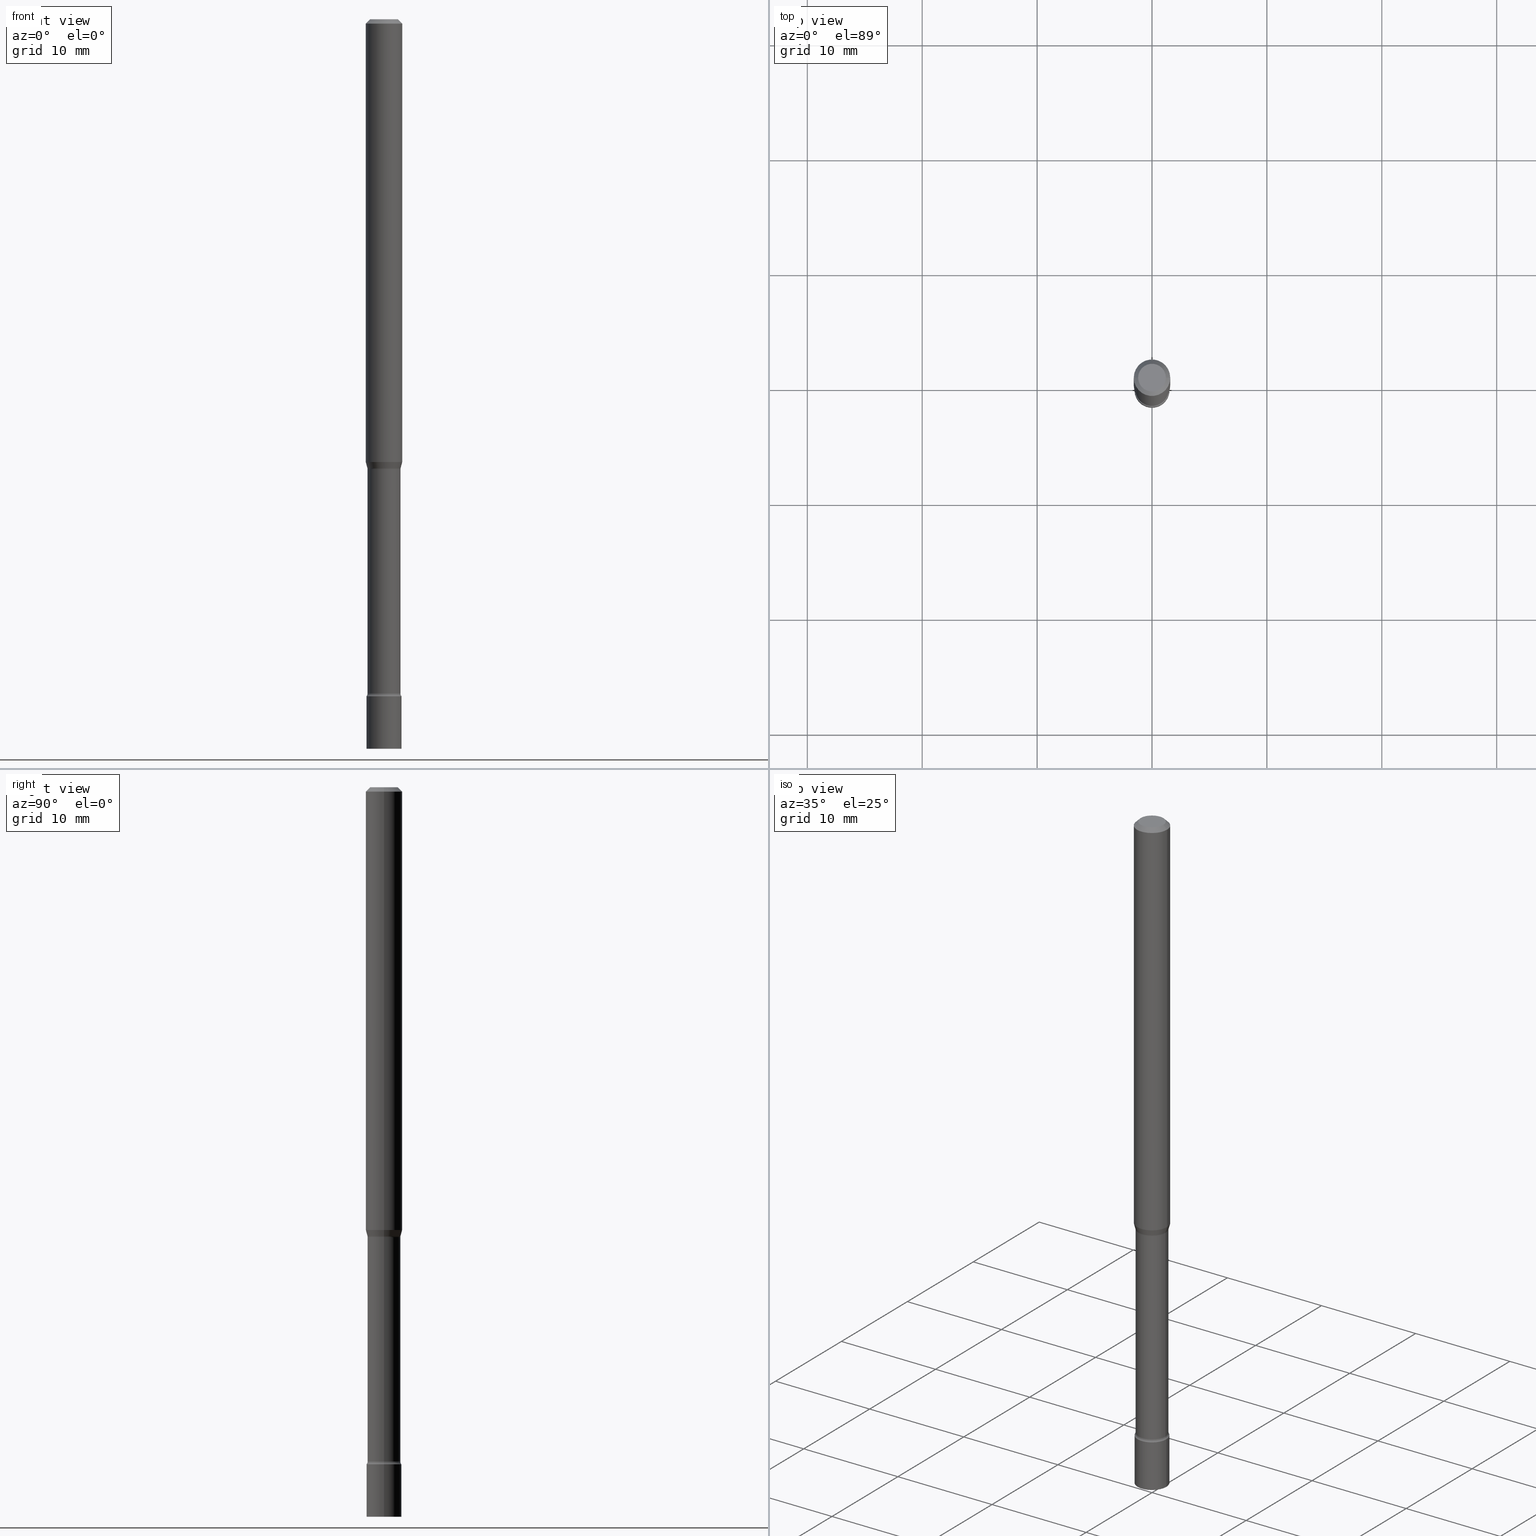
[diagram: canonical four-view strip — front | top / right | iso, engineering-drawing reading convention]
A machine part, canonical four-view strip (front | top / right | iso — engineering-drawing reading convention). The complete STEP part file that produces these views, byte-faithful:
ISO-10303-21;
HEADER;
FILE_DESCRIPTION (( 'STEP AP203' ),
    '1' );
FILE_NAME ('09783.STEP',
    '2024-03-09T02:05:43',
    ( '' ),
    ( '' ),
    'SwSTEP 2.0',
    'SolidWorks 2023',
    '' );
FILE_SCHEMA (( 'CONFIG_CONTROL_DESIGN' ));
ENDSEC;

DATA;
#1 = EDGE_CURVE ( 'NONE', #126, #133, #448, .T. ) ;
#2 = EDGE_LOOP ( 'NONE', ( #462, #175, #27, #181 ) ) ;
#3 = CARTESIAN_POINT ( 'NONE',  ( 3.770851242666705328E-29, -5.383776195396521708E-15, -1.541974787463811003 ) ) ;
#4 = AXIS2_PLACEMENT_3D ( 'NONE', #202, #38, #118 ) ;
#5 = VERTEX_POINT ( 'NONE', #407 ) ;
#6 = ORIENTED_EDGE ( 'NONE', *, *, #360, .T. ) ;
#7 = VERTEX_POINT ( 'NONE', #35 ) ;
#8 = VERTEX_POINT ( 'NONE', #208 ) ;
#9 = CONICAL_SURFACE ( 'NONE', #71, 0.05691111260566396324, 0.2617993877991485197 ) ;
#10 = PRODUCT_DEFINITION_FORMATION_WITH_SPECIFIED_SOURCE ( 'ANY', '', #198, .NOT_KNOWN. ) ;
#11 = EDGE_CURVE ( 'NONE', #13, #464, #395, .T. ) ;
#12 = DIRECTION ( 'NONE',  ( 1.000000000000000000, -6.982962677686266711E-15, 0.000000000000000000 ) ) ;
#13 = VERTEX_POINT ( 'NONE', #42 ) ;
#14 = EDGE_CURVE ( 'NONE', #8, #363, #218, .T. ) ;
#15 = DIRECTION ( 'NONE',  ( -2.445468806185136597E-29, 3.491481338843145583E-15, 1.000000000000000000 ) ) ;
#16 = AXIS2_PLACEMENT_3D ( 'NONE', #346, #468, #311 ) ;
#17 = FACE_OUTER_BOUND ( 'NONE', #460, .T. ) ;
#18 = FACE_OUTER_BOUND ( 'NONE', #338, .T. ) ;
#19 = DIRECTION ( 'NONE',  ( 1.000000000000000000, -6.982962677686270655E-15, 4.883557194083115143E-29 ) ) ;
#20 = CARTESIAN_POINT ( 'NONE',  ( 6.113672015462842613E-29, -8.728703347107864943E-15, -2.500000000000000000 ) ) ;
#21 = DIRECTION ( 'NONE',  ( -1.000000000000000000, 6.982962677686265922E-15, -4.876176775795935793E-29 ) ) ;
#22 = APPROVAL_DATE_TIME ( #274, #376 ) ;
#23 = CARTESIAN_POINT ( 'NONE',  ( -0.06250000000000000000, 4.440892098500626162E-16, -3.074334431409316114E-30 ) ) ;
#24 = EDGE_CURVE ( 'NONE', #5, #8, #273, .T. ) ;
#25 = DIRECTION ( 'NONE',  ( 1.000000000000000000, -6.982962677686259611E-15, 0.000000000000000000 ) ) ;
#26 = CIRCLE ( 'NONE', #302, 0.05639999999999999181 ) ;
#27 = ORIENTED_EDGE ( 'NONE', *, *, #289, .T. ) ;
#28 = ADVANCED_FACE ( 'NONE', ( #18 ), #506, .T. ) ;
#29 = FACE_OUTER_BOUND ( 'NONE', #308, .T. ) ;
#30 = CALENDAR_DATE ( 2024, 8, 3 ) ;
#31 = VERTEX_POINT ( 'NONE', #303 ) ;
#32 = EDGE_CURVE ( 'NONE', #340, #7, #225, .T. ) ;
#33 = EDGE_CURVE ( 'NONE', #65, #464, #268, .T. ) ;
#34 = AXIS2_PLACEMENT_3D ( 'NONE', #39, #178, #416 ) ;
#35 = CARTESIAN_POINT ( 'NONE',  ( 0.05639999999999999181, -5.777615290418026324E-15, -1.541974787463811003 ) ) ;
#36 = AXIS2_PLACEMENT_3D ( 'NONE', #111, #255, #515 ) ;
#37 = EDGE_CURVE ( 'NONE', #5, #241, #341, .T. ) ;
#38 = DIRECTION ( 'NONE',  ( -2.445468806185136597E-29, 3.491481338843145583E-15, 1.000000000000000000 ) ) ;
#39 = CARTESIAN_POINT ( 'NONE',  ( 0.000000000000000000, 0.000000000000000000, 0.000000000000000000 ) ) ;
#40 = PERSON_AND_ORGANIZATION ( #174, #452 ) ;
#41 = ORIENTED_EDGE ( 'NONE', *, *, #69, .T. ) ;
#42 = CARTESIAN_POINT ( 'NONE',  ( -0.06250000000000000000, -4.853306698891908951E-15, -1.517234490073829711 ) ) ;
#43 = DATE_AND_TIME ( #229, #142 ) ;
#44 = VECTOR ( 'NONE', #245, 39.37007874015748143 ) ;
#45 = DIMENSIONAL_EXPONENTS ( 1.000000000000000000, 0.000000000000000000, 0.000000000000000000, 0.000000000000000000, 0.000000000000000000, 0.000000000000000000, 0.000000000000000000 ) ;
#46 = TOROIDAL_SURFACE ( 'NONE', #54, 0.07140000000000003288, 0.01500000000000001506 ) ;
#47 = CARTESIAN_POINT ( 'NONE',  ( -0.06250000000000000000, 3.840629472727443437E-16, -0.01500000000000003067 ) ) ;
#48 = COORDINATED_UNIVERSAL_TIME_OFFSET ( 5, 0, .BEHIND. ) ;
#49 = APPLICATION_PROTOCOL_DEFINITION ( 'international standard', 'config_control_design', 1994, #498 ) ;
#50 = LENGTH_MEASURE_WITH_UNIT ( LENGTH_MEASURE( 0.02539999999999999897 ), #301 );
#51 = ADVANCED_FACE ( 'NONE', ( #193 ), #408, .T. ) ;
#52 = EDGE_CURVE ( 'NONE', #31, #117, #185, .T. ) ;
#53 = AXIS2_PLACEMENT_3D ( 'NONE', #190, #471, #461 ) ;
#54 = AXIS2_PLACEMENT_3D ( 'NONE', #513, #479, #109 ) ;
#55 = DIRECTION ( 'NONE',  ( -2.445468806185136877E-29, 3.491481338843145188E-15, 1.000000000000000000 ) ) ;
#56 = FACE_OUTER_BOUND ( 'NONE', #157, .T. ) ;
#57 = DIRECTION ( 'NONE',  ( 1.000000000000000000, -6.982962677686267499E-15, 4.876681293081646444E-29 ) ) ;
#58 = CALENDAR_DATE ( 2024, 8, 3 ) ;
#59 = CARTESIAN_POINT ( 'NONE',  ( 6.113672015462842613E-29, -8.728703347107864943E-15, -2.500000000000000000 ) ) ;
#60 = VECTOR ( 'NONE', #441, 39.37007874015748143 ) ;
#61 = AXIS2_PLACEMENT_3D ( 'NONE', #169, #337, #296 ) ;
#62 = DIRECTION ( 'NONE',  ( -2.445468806185136597E-29, 3.491481338843145583E-15, 1.000000000000000000 ) ) ;
#63 = CARTESIAN_POINT ( 'NONE',  ( -0.05999999999999999778, -7.988144385155922766E-15, -2.320000000000000284 ) ) ;
#64 = DATE_TIME_ROLE ( 'classification_date' ) ;
#65 = VERTEX_POINT ( 'NONE', #355 ) ;
#66 = CC_DESIGN_PERSON_AND_ORGANIZATION_ASSIGNMENT ( #40, #194, ( #10 ) ) ;
#67 = CARTESIAN_POINT ( 'NONE',  ( 5.649647131350973229E-29, -8.066198791933100712E-15, -2.310251153914436806 ) ) ;
#68 = PERSON_AND_ORGANIZATION ( #174, #452 ) ;
#69 = EDGE_CURVE ( 'NONE', #345, #165, #171, .T. ) ;
#70 = VERTEX_POINT ( 'NONE', #201 ) ;
#71 = AXIS2_PLACEMENT_3D ( 'NONE', #336, #124, #295 ) ;
#72 = CARTESIAN_POINT ( 'NONE',  ( 0.000000000000000000, 0.000000000000000000, 0.000000000000000000 ) ) ;
#73 = TOROIDAL_SURFACE ( 'NONE', #112, 0.07140000000000003288, 0.01500000000000001506 ) ;
#74 = ORIENTED_EDGE ( 'NONE', *, *, #309, .T. ) ;
#75 = CYLINDRICAL_SURFACE ( 'NONE', #373, 0.06250000000000000000 ) ;
#76 = FACE_OUTER_BOUND ( 'NONE', #512, .T. ) ;
#77 = CARTESIAN_POINT ( 'NONE',  ( 0.05999999999999999778, -4.189777606611760421E-16, 2.925706065477561756E-30 ) ) ;
#78 = CC_DESIGN_DATE_AND_TIME_ASSIGNMENT ( #107, #64, ( #444 ) ) ;
#79 = DIRECTION ( 'NONE',  ( 1.000000000000000000, -6.982962677686262766E-15, 0.000000000000000000 ) ) ;
#80 = CARTESIAN_POINT ( 'NONE',  ( 3.761357234148032586E-29, -5.370221267404831910E-15, -1.538092501787273081 ) ) ;
#81 = DIRECTION ( 'NONE',  ( 1.000000000000000000, -6.982962677686261977E-15, 0.000000000000000000 ) ) ;
#82 = CONICAL_SURFACE ( 'NONE', #505, 0.06250000000000000000, 0.7853981633974483900 ) ;
#83 = LINE ( 'NONE', #367, #442 ) ;
#84 = DIRECTION ( 'NONE',  ( 1.000000000000000000, -6.982962677686266711E-15, 4.876176775795935793E-29 ) ) ;
#85 = CYLINDRICAL_SURFACE ( 'NONE', #465, 0.05999999999999999778 ) ;
#86 = DIRECTION ( 'NONE',  ( -6.982962677686266711E-15, -1.000000000000000000, 3.491481338843145583E-15 ) ) ;
#87 = AXIS2_PLACEMENT_3D ( 'NONE', #80, #290, #453 ) ;
#88 = LOCAL_TIME ( 21, 5, 43.00000000000000000, #176 ) ;
#89 = ORIENTED_EDGE ( 'NONE', *, *, #467, .T. ) ;
#90 = EDGE_CURVE ( 'NONE', #241, #7, #331, .T. ) ;
#91 = APPROVAL_STATUS ( 'not_yet_approved' ) ;
#92 = EDGE_CURVE ( 'NONE', #345, #13, #252, .T. ) ;
#93 = ORIENTED_EDGE ( 'NONE', *, *, #228, .T. ) ;
#94 = DIRECTION ( 'NONE',  ( -2.445468806185136597E-29, 3.491481338843145583E-15, 1.000000000000000000 ) ) ;
#95 = AXIS2_PLACEMENT_3D ( 'NONE', #457, #15, #418 ) ;
#96 = AXIS2_PLACEMENT_3D ( 'NONE', #332, #412, #213 ) ;
#97 = DIRECTION ( 'NONE',  ( -2.445468806185136877E-29, 3.491481338843145188E-15, 1.000000000000000000 ) ) ;
#98 = DATE_TIME_ROLE ( 'creation_date' ) ;
#99 = DIRECTION ( 'NONE',  ( -2.445468806185136597E-29, 3.491481338843145583E-15, 1.000000000000000000 ) ) ;
#100 = DIRECTION ( 'NONE',  ( -2.445468806185136597E-29, 3.491481338843145583E-15, 1.000000000000000000 ) ) ;
#101 = AXIS2_PLACEMENT_3D ( 'NONE', #140, #235, #189 ) ;
#102 = CC_DESIGN_APPROVAL ( #376, ( #444 ) ) ;
#103 = DIRECTION ( 'NONE',  ( -2.445468806185136877E-29, 3.491481338843145188E-15, 1.000000000000000000 ) ) ;
#104 = FACE_OUTER_BOUND ( 'NONE', #182, .T. ) ;
#105 = DIRECTION ( 'NONE',  ( -2.445468806185136597E-29, 3.491481338843145583E-15, 1.000000000000000000 ) ) ;
#106 = DIRECTION ( 'NONE',  ( -2.445468806185136597E-29, 3.491481338843145583E-15, 1.000000000000000000 ) ) ;
#107 = DATE_AND_TIME ( #30, #226 ) ;
#108 = EDGE_LOOP ( 'NONE', ( #294, #277, #486, #384 ) ) ;
#109 = DIRECTION ( 'NONE',  ( 1.000000000000000000, -6.982962677686270655E-15, 4.883557194083115143E-29 ) ) ;
#110 = COORDINATED_UNIVERSAL_TIME_OFFSET ( 5, 0, .BEHIND. ) ;
#111 = CARTESIAN_POINT ( 'NONE',  ( 7.070806723891919892E-46, -1.009523804376275404E-31, -2.891391092786900929E-17 ) ) ;
#112 = AXIS2_PLACEMENT_3D ( 'NONE', #197, #359, #19 ) ;
#113 = APPROVAL_STATUS ( 'not_yet_approved' ) ;
#114 = ORIENTED_EDGE ( 'NONE', *, *, #52, .T. ) ;
#115 = CARTESIAN_POINT ( 'NONE',  ( 3.668203209277712094E-31, -5.237222008264728876E-17, -0.01500000000000003067 ) ) ;
#116 = APPLICATION_CONTEXT ( 'configuration controlled 3d designs of mechanical parts and assemblies' ) ;
#117 = VERTEX_POINT ( 'NONE', #440 ) ;
#118 = DIRECTION ( 'NONE',  ( 1.000000000000000000, -6.982962677686267499E-15, 4.876176775795936353E-29 ) ) ;
#119 = ADVANCED_FACE ( 'NONE', ( #160 ), #466, .T. ) ;
#120 = TOROIDAL_SURFACE ( 'NONE', #426, 0.07139999999999999125, 0.01500000000000003240 ) ;
#121 = ORIENTED_EDGE ( 'NONE', *, *, #52, .F. ) ;
#122 = ADVANCED_BREP_SHAPE_REPRESENTATION ( '09783', ( #514, #516, #96 ), #519 ) ;
#123 = CC_DESIGN_PERSON_AND_ORGANIZATION_ASSIGNMENT ( #356, #153, ( #10 ) ) ;
#124 = DIRECTION ( 'NONE',  ( -2.445468806185136597E-29, 3.491481338843145583E-15, 1.000000000000000000 ) ) ;
#125 = ADVANCED_FACE ( 'NONE', ( #366 ), #85, .T. ) ;
#126 = VERTEX_POINT ( 'NONE', #329 ) ;
#127 = CYLINDRICAL_SURFACE ( 'NONE', #4, 0.05999999999999999778 ) ;
#128 = APPROVAL_DATE_TIME ( #43, #151 ) ;
#129 = ORIENTED_EDGE ( 'NONE', *, *, #14, .T. ) ;
#130 = EDGE_CURVE ( 'NONE', #340, #345, #250, .T. ) ;
#131 = PERSON_AND_ORGANIZATION ( #174, #452 ) ;
#132 = AXIS2_PLACEMENT_3D ( 'NONE', #315, #391, #12 ) ;
#133 = VERTEX_POINT ( 'NONE', #410 ) ;
#134 = ORIENTED_EDGE ( 'NONE', *, *, #321, .T. ) ;
#135 = FACE_OUTER_BOUND ( 'NONE', #492, .T. ) ;
#136 = CALENDAR_DATE ( 2024, 8, 3 ) ;
#137 = CARTESIAN_POINT ( 'NONE',  ( 3.668203209277712094E-31, -5.237222008264728876E-17, -0.01500000000000003067 ) ) ;
#138 = ORIENTED_EDGE ( 'NONE', *, *, #380, .T. ) ;
#139 = DIRECTION ( 'NONE',  ( 1.000000000000000000, -6.982962677686265922E-15, 4.876176775795935793E-29 ) ) ;
#140 = CARTESIAN_POINT ( 'NONE',  ( 5.649647131350973229E-29, -8.066198791933100712E-15, -2.310251153914436806 ) ) ;
#141 = AXIS2_PLACEMENT_3D ( 'NONE', #59, #100, #434 ) ;
#142 = LOCAL_TIME ( 21, 5, 43.00000000000000000, #284 ) ;
#143 = PLANE ( 'NONE',  #149 ) ;
#144 = DIRECTION ( 'NONE',  ( 1.000000000000000000, -6.982962677686251722E-15, 0.000000000000000000 ) ) ;
#145 = PLANE ( 'NONE',  #517 ) ;
#146 = EDGE_CURVE ( 'NONE', #217, #266, #83, .T. ) ;
#147 = ORIENTED_EDGE ( 'NONE', *, *, #319, .F. ) ;
#148 = VECTOR ( 'NONE', #97, 39.37007874015748143 ) ;
#149 = AXIS2_PLACEMENT_3D ( 'NONE', #316, #272, #211 ) ;
#150 = CARTESIAN_POINT ( 'NONE',  ( 5.673487630349517039E-29, -8.100236706116099992E-15, -2.320000000000000284 ) ) ;
#151 = APPROVAL ( #91, 'UNSPECIFIED' ) ;
#152 = DIRECTION ( 'NONE',  ( 2.438088387897960049E-29, -3.491481338843145188E-15, -1.000000000000000000 ) ) ;
#153 = PERSON_AND_ORGANIZATION_ROLE ( 'design_supplier' ) ;
#154 = DIRECTION ( 'NONE',  ( -1.000000000000000000, 6.982962677686266711E-15, 0.000000000000000000 ) ) ;
#155 = CARTESIAN_POINT ( 'NONE',  ( 3.770851242666705328E-29, -5.383776195396521708E-15, -1.541974787463811003 ) ) ;
#156 = PERSON_AND_ORGANIZATION ( #174, #452 ) ;
#157 = EDGE_LOOP ( 'NONE', ( #411, #469 ) ) ;
#158 = ORIENTED_EDGE ( 'NONE', *, *, #372, .F. ) ;
#159 = AXIS2_PLACEMENT_3D ( 'NONE', #485, #287, #162 ) ;
#160 = FACE_OUTER_BOUND ( 'NONE', #496, .T. ) ;
#161 = DIRECTION ( 'NONE',  ( 1.000000000000000000, -6.982962677686267499E-15, 4.876176775795936353E-29 ) ) ;
#162 = DIRECTION ( 'NONE',  ( -1.000000000000000000, 7.105427357600974249E-15, 0.000000000000000000 ) ) ;
#163 = ORIENTED_EDGE ( 'NONE', *, *, #380, .F. ) ;
#164 = FACE_OUTER_BOUND ( 'NONE', #2, .T. ) ;
#165 = VERTEX_POINT ( 'NONE', #210 ) ;
#166 = LINE ( 'NONE', #445, #313 ) ;
#167 = CLOSED_SHELL ( 'NONE', ( #490, #437, #125, #257 ) ) ;
#168 = DIRECTION ( 'NONE',  ( -1.000000000000000000, 6.982962677686266711E-15, 0.000000000000000000 ) ) ;
#169 = CARTESIAN_POINT ( 'NONE',  ( 3.710349617143762616E-29, -5.297395908741972356E-15, -1.517234490073829711 ) ) ;
#170 = AXIS2_PLACEMENT_3D ( 'NONE', #393, #271, #57 ) ;
#171 = CIRCLE ( 'NONE', #159, 0.01500000000000003587 ) ;
#172 = CARTESIAN_POINT ( 'NONE',  ( 0.07139999999999999125, -5.882359730583320482E-15, -1.541974787463811003 ) ) ;
#173 = AXIS2_PLACEMENT_3D ( 'NONE', #137, #94, #231 ) ;
#174 = PERSON ( 'UNSPECIFIED', 'UNSPECIFIED', 'UNSPECIFIED', ('UNSPECIFIED'), ('UNSPECIFIED'), ('UNSPECIFIED') ) ;
#175 = ORIENTED_EDGE ( 'NONE', *, *, #491, .T. ) ;
#176 = COORDINATED_UNIVERSAL_TIME_OFFSET ( 5, 0, .BEHIND. ) ;
#177 = ADVANCED_FACE ( 'NONE', ( #164 ), #9, .T. ) ;
#178 = DIRECTION ( 'NONE',  ( -2.445468806185136597E-29, 3.491481338843145583E-15, 1.000000000000000000 ) ) ;
#179 = CIRCLE ( 'NONE', #388, 0.05999999999999999778 ) ;
#180 = CIRCLE ( 'NONE', #36, 0.04749999999999999362 ) ;
#181 = ORIENTED_EDGE ( 'NONE', *, *, #467, .F. ) ;
#182 = EDGE_LOOP ( 'NONE', ( #488, #325, #129, #495 ) ) ;
#183 = PLANE ( 'NONE',  #459 ) ;
#184 = ORIENTED_EDGE ( 'NONE', *, *, #423, .T. ) ;
#185 = CIRCLE ( 'NONE', #170, 0.04749999999999999362 ) ;
#186 = CIRCLE ( 'NONE', #61, 0.06250000000000000000 ) ;
#187 = DIRECTION ( 'NONE',  ( -0.2588190451025198513, 5.211531920934540787E-15, 0.9659258262890685343 ) ) ;
#188 = CARTESIAN_POINT ( 'NONE',  ( 0.06250000000000000000, -4.811533449433680977E-16, -0.01500000000000003067 ) ) ;
#189 = DIRECTION ( 'NONE',  ( 1.000000000000000000, -6.982962677686259611E-15, 0.000000000000000000 ) ) ;
#190 = CARTESIAN_POINT ( 'NONE',  ( -0.07140000000000003288, -7.558871278600389833E-15, -2.310251153914437250 ) ) ;
#191 = ADVANCED_FACE ( 'NONE', ( #260 ), #75, .T. ) ;
#192 = DIRECTION ( 'NONE',  ( 0.7071067811865475727, -7.319954787623256045E-15, -0.7071067811865474617 ) ) ;
#193 = FACE_OUTER_BOUND ( 'NONE', #501, .T. ) ;
#194 = PERSON_AND_ORGANIZATION_ROLE ( 'creator' ) ;
#195 = CIRCLE ( 'NONE', #420, 0.05999999999999999778 ) ;
#196 = LOCAL_TIME ( 21, 5, 43.00000000000000000, #48 ) ;
#197 = CARTESIAN_POINT ( 'NONE',  ( 5.649647131350973229E-29, -8.066198791933102290E-15, -2.310251153914437250 ) ) ;
#198 = PRODUCT ( '09783', '09783', '', ( #300 ) ) ;
#199 = EDGE_CURVE ( 'NONE', #126, #217, #433, .T. ) ;
#200 = FACE_OUTER_BOUND ( 'NONE', #494, .T. ) ;
#201 = CARTESIAN_POINT ( 'NONE',  ( 0.06250000000000000000, -5.733831076097364025E-15, -1.517234490073829711 ) ) ;
#202 = CARTESIAN_POINT ( 'NONE',  ( 0.000000000000000000, 0.000000000000000000, 0.000000000000000000 ) ) ;
#203 = DIRECTION ( 'NONE',  ( 1.000000000000000000, -6.982962677686262766E-15, 0.000000000000000000 ) ) ;
#204 = APPROVAL_ROLE ( '' ) ;
#205 = ORIENTED_EDGE ( 'NONE', *, *, #130, .T. ) ;
#206 = CIRCLE ( 'NONE', #451, 0.01500000000000001853 ) ;
#207 = DIRECTION ( 'NONE',  ( 2.445468806185136597E-29, -3.491481338843145583E-15, -1.000000000000000000 ) ) ;
#208 = CARTESIAN_POINT ( 'NONE',  ( -0.05999999999999999778, -7.673911064660039502E-15, -2.320000000000000284 ) ) ;
#209 = EDGE_CURVE ( 'NONE', #217, #126, #179, .T. ) ;
#210 = CARTESIAN_POINT ( 'NONE',  ( -0.05639999999999999181, -6.324241390696113876E-15, -1.541974787463811003 ) ) ;
#211 = DIRECTION ( 'NONE',  ( 1.000000000000000000, -6.982962677686265922E-15, 4.876176775795935793E-29 ) ) ;
#212 = ORIENTED_EDGE ( 'NONE', *, *, #33, .T. ) ;
#213 = DIRECTION ( 'NONE',  ( 1.000000000000000000, 0.000000000000000000, 0.000000000000000000 ) ) ;
#214 = DIRECTION ( 'NONE',  ( -2.445468806185136597E-29, 3.491481338843145583E-15, 1.000000000000000000 ) ) ;
#215 = ADVANCED_FACE ( 'NONE', ( #291 ), #82, .T. ) ;
#216 = ADVANCED_FACE ( 'NONE', ( #17 ), #463, .T. ) ;
#217 = VERTEX_POINT ( 'NONE', #267 ) ;
#218 = CIRCLE ( 'NONE', #292, 0.05999999999999999778 ) ;
#219 = ADVANCED_FACE ( 'NONE', ( #385 ), #183, .F. ) ;
#220 = EDGE_LOOP ( 'NONE', ( #114, #184 ) ) ;
#221 = ORIENTED_EDGE ( 'NONE', *, *, #489, .F. ) ;
#222 = PERSON_AND_ORGANIZATION ( #174, #452 ) ;
#223 = PERSON_AND_ORGANIZATION_ROLE ( 'creator' ) ;
#224 = ORIENTED_EDGE ( 'NONE', *, *, #319, .T. ) ;
#225 = CIRCLE ( 'NONE', #484, 0.01500000000000003587 ) ;
#226 = LOCAL_TIME ( 21, 5, 43.00000000000000000, #361 ) ;
#227 = ORIENTED_EDGE ( 'NONE', *, *, #491, .F. ) ;
#228 = EDGE_CURVE ( 'NONE', #363, #8, #280, .T. ) ;
#229 = CALENDAR_DATE ( 2024, 8, 3 ) ;
#230 = ORIENTED_EDGE ( 'NONE', *, *, #37, .T. ) ;
#231 = DIRECTION ( 'NONE',  ( 1.000000000000000000, -6.982962677686266711E-15, 0.000000000000000000 ) ) ;
#232 = EDGE_CURVE ( 'NONE', #7, #165, #335, .T. ) ;
#233 = EDGE_LOOP ( 'NONE', ( #305, #121, #415, #333 ) ) ;
#234 = CARTESIAN_POINT ( 'NONE',  ( 4.189777606612371295E-16, 0.05999999999999127559, -2.500000000000000000 ) ) ;
#235 = DIRECTION ( 'NONE',  ( -2.445468806185136597E-29, 3.491481338843145583E-15, 1.000000000000000000 ) ) ;
#236 = AXIS2_PLACEMENT_3D ( 'NONE', #234, #401, #21 ) ;
#237 = CC_DESIGN_DATE_AND_TIME_ASSIGNMENT ( #343, #98, ( #347 ) ) ;
#238 = CIRCLE ( 'NONE', #409, 0.05999999999999999778 ) ;
#239 = EDGE_CURVE ( 'NONE', #5, #165, #428, .T. ) ;
#240 = DIRECTION ( 'NONE',  ( -2.445468806185136597E-29, 3.491481338843145583E-15, 1.000000000000000000 ) ) ;
#241 = VERTEX_POINT ( 'NONE', #270 ) ;
#242 = DIRECTION ( 'NONE',  ( -2.445468806185136597E-29, 3.491481338843145583E-15, 1.000000000000000000 ) ) ;
#243 = CARTESIAN_POINT ( 'NONE',  ( 0.07140000000000003288, -8.564782327119902642E-15, -2.310251153914437250 ) ) ;
#244 = DIRECTION ( 'NONE',  ( 1.000000000000000000, -6.982962677686262766E-15, 0.000000000000000000 ) ) ;
#245 = DIRECTION ( 'NONE',  ( -2.445468806185136877E-29, 3.491481338843145188E-15, 1.000000000000000000 ) ) ;
#246 = CC_DESIGN_PERSON_AND_ORGANIZATION_ASSIGNMENT ( #131, #223, ( #347 ) ) ;
#247 = PRODUCT_DEFINITION_SHAPE ( 'NONE', 'NONE',  #347 ) ;
#248 = FACE_OUTER_BOUND ( 'NONE', #220, .T. ) ;
#249 = ORIENTED_EDGE ( 'NONE', *, *, #423, .F. ) ;
#250 = CIRCLE ( 'NONE', #87, 0.05691111260566396324 ) ;
#251 = AXIS2_PLACEMENT_3D ( 'NONE', #67, #282, #25 ) ;
#252 = LINE ( 'NONE', #435, #318 ) ;
#253 = DIRECTION ( 'NONE',  ( -2.445468806185136597E-29, 3.491481338843145583E-15, 1.000000000000000000 ) ) ;
#254 = ORIENTED_EDGE ( 'NONE', *, *, #24, .F. ) ;
#255 = DIRECTION ( 'NONE',  ( -2.445468806185136597E-29, 3.491481338843145583E-15, 1.000000000000000000 ) ) ;
#256 = ORIENTED_EDGE ( 'NONE', *, *, #454, .T. ) ;
#257 = ADVANCED_FACE ( 'NONE', ( #56 ), #387, .T. ) ;
#258 = ORIENTED_EDGE ( 'NONE', *, *, #14, .F. ) ;
#259 = CARTESIAN_POINT ( 'NONE',  ( 3.761357234148032586E-29, -5.370221267404831910E-15, -1.538092501787273081 ) ) ;
#260 = FACE_OUTER_BOUND ( 'NONE', #350, .T. ) ;
#261 = ADVANCED_FACE ( 'NONE', ( #248 ), #145, .F. ) ;
#262 = AXIS2_PLACEMENT_3D ( 'NONE', #115, #207, #168 ) ;
#263 = VECTOR ( 'NONE', #285, 39.37007874015748143 ) ;
#264 = PERSON_AND_ORGANIZATION_ROLE ( 'design_owner' ) ;
#265 = ORIENTED_EDGE ( 'NONE', *, *, #90, .T. ) ;
#266 = VERTEX_POINT ( 'NONE', #63 ) ;
#267 = CARTESIAN_POINT ( 'NONE',  ( -0.05999999999999999778, -7.988144385155922766E-15, -2.500000000000000000 ) ) ;
#268 = CIRCLE ( 'NONE', #132, 0.06250000000000000000 ) ;
#269 = CIRCLE ( 'NONE', #251, 0.05640000000000001262 ) ;
#270 = CARTESIAN_POINT ( 'NONE',  ( 0.05640000000000001262, -8.460037886954606117E-15, -2.310251153914436806 ) ) ;
#271 = DIRECTION ( 'NONE',  ( -2.445468806185136597E-29, 3.491481338843145583E-15, 1.000000000000000000 ) ) ;
#272 = DIRECTION ( 'NONE',  ( -2.438088387897960049E-29, 3.491481338843145188E-15, 1.000000000000000000 ) ) ;
#273 = CIRCLE ( 'NONE', #53, 0.01500000000000001853 ) ;
#274 = DATE_AND_TIME ( #402, #493 ) ;
#275 = ORIENTED_EDGE ( 'NONE', *, *, #199, .T. ) ;
#276 = DIRECTION ( 'NONE',  ( 1.000000000000000000, -6.982962677686268288E-15, 0.000000000000000000 ) ) ;
#277 = ORIENTED_EDGE ( 'NONE', *, *, #209, .T. ) ;
#278 = CARTESIAN_POINT ( 'NONE',  ( 0.05691111260566396324, -5.767629442675783362E-15, -1.538092501787273081 ) ) ;
#279 = ORIENTED_EDGE ( 'NONE', *, *, #502, .T. ) ;
#280 = CIRCLE ( 'NONE', #95, 0.05999999999999999778 ) ;
#281 = APPROVAL_PERSON_ORGANIZATION ( #422, #286, #379 ) ;
#282 = DIRECTION ( 'NONE',  ( -2.445468806185136597E-29, 3.491481338843145583E-15, 1.000000000000000000 ) ) ;
#283 = PRODUCT_RELATED_PRODUCT_CATEGORY ( 'detail', '', ( #198 ) ) ;
#284 = COORDINATED_UNIVERSAL_TIME_OFFSET ( 5, 0, .BEHIND. ) ;
#285 = DIRECTION ( 'NONE',  ( -0.7071067811865475727, 2.468850131082257455E-15, -0.7071067811865474617 ) ) ;
#286 = APPROVAL ( #304, 'UNSPECIFIED' ) ;
#287 = DIRECTION ( 'NONE',  ( 7.105427357601001859E-15, 1.000000000000000000, -3.491481338843145583E-15 ) ) ;
#288 = ORIENTED_EDGE ( 'NONE', *, *, #372, .T. ) ;
#289 = EDGE_CURVE ( 'NONE', #340, #70, #390, .T. ) ;
#290 = DIRECTION ( 'NONE',  ( -2.445468806185136597E-29, 3.491481338843145583E-15, 1.000000000000000000 ) ) ;
#291 = FACE_OUTER_BOUND ( 'NONE', #233, .T. ) ;
#292 = AXIS2_PLACEMENT_3D ( 'NONE', #421, #324, #447 ) ;
#293 = CC_DESIGN_APPROVAL ( #286, ( #10 ) ) ;
#294 = ORIENTED_EDGE ( 'NONE', *, *, #146, .F. ) ;
#295 = DIRECTION ( 'NONE',  ( 1.000000000000000000, -6.982962677686262766E-15, 0.000000000000000000 ) ) ;
#296 = DIRECTION ( 'NONE',  ( 1.000000000000000000, -6.982962677686262766E-15, 0.000000000000000000 ) ) ;
#297 = ADVANCED_FACE ( 'NONE', ( #29 ), #474, .T. ) ;
#298 = DIRECTION ( 'NONE',  ( -2.438088387897960049E-29, 3.491481338843145188E-15, 1.000000000000000000 ) ) ;
#299 = ORIENTED_EDGE ( 'NONE', *, *, #92, .T. ) ;
#300 = MECHANICAL_CONTEXT ( 'NONE', #116, 'mechanical' ) ;
#301 =( LENGTH_UNIT ( ) NAMED_UNIT ( * ) SI_UNIT ( $, .METRE. ) );
#302 = AXIS2_PLACEMENT_3D ( 'NONE', #3, #330, #81 ) ;
#303 = CARTESIAN_POINT ( 'NONE',  ( -0.04749999999999999362, 3.578768372314209027E-16, -2.891391092787141902E-17 ) ) ;
#304 = APPROVAL_STATUS ( 'not_yet_approved' ) ;
#305 = ORIENTED_EDGE ( 'NONE', *, *, #321, .F. ) ;
#306 =( NAMED_UNIT ( * ) PLANE_ANGLE_UNIT ( ) SI_UNIT ( $, .RADIAN. ) );
#307 = DATE_AND_TIME ( #136, #196 ) ;
#308 = EDGE_LOOP ( 'NONE', ( #138, #371, #518, #429 ) ) ;
#309 = EDGE_CURVE ( 'NONE', #241, #363, #206, .T. ) ;
#310 = ORIENTED_EDGE ( 'NONE', *, *, #11, .F. ) ;
#311 = DIRECTION ( 'NONE',  ( 1.000000000000000000, -6.982962677686261977E-15, 0.000000000000000000 ) ) ;
#312 = CARTESIAN_POINT ( 'NONE',  ( 3.761357234148032586E-29, -5.370221267404831910E-15, -1.538092501787273081 ) ) ;
#313 = VECTOR ( 'NONE', #55, 39.37007874015748143 ) ;
#314 = ORIENTED_EDGE ( 'NONE', *, *, #228, .F. ) ;
#315 = CARTESIAN_POINT ( 'NONE',  ( 3.668203209277712094E-31, -5.237222008264728876E-17, -0.01500000000000003067 ) ) ;
#316 = CARTESIAN_POINT ( 'NONE',  ( 5.673487630349517039E-29, -8.100236706116099992E-15, -2.320000000000000284 ) ) ;
#317 = DIRECTION ( 'NONE',  ( 1.000000000000000000, -6.982962677686271444E-15, 4.883557194083115143E-29 ) ) ;
#318 = VECTOR ( 'NONE', #187, 39.37007874015748143 ) ;
#319 = EDGE_CURVE ( 'NONE', #70, #13, #497, .T. ) ;
#320 = CARTESIAN_POINT ( 'NONE',  ( 5.673487630349517039E-29, -8.100236706116099992E-15, -2.320000000000000284 ) ) ;
#321 = EDGE_CURVE ( 'NONE', #117, #65, #483, .T. ) ;
#322 = DIRECTION ( 'NONE',  ( -2.445468806185136597E-29, 3.491481338843145583E-15, 1.000000000000000000 ) ) ;
#323 = DIRECTION ( 'NONE',  ( 1.000000000000000000, -6.982962677686271444E-15, 4.883557194083115143E-29 ) ) ;
#324 = DIRECTION ( 'NONE',  ( -2.445468806185136597E-29, 3.491481338843145583E-15, 1.000000000000000000 ) ) ;
#325 = ORIENTED_EDGE ( 'NONE', *, *, #24, .T. ) ;
#326 = VECTOR ( 'NONE', #103, 39.37007874015748143 ) ;
#327 = ORIENTED_EDGE ( 'NONE', *, *, #32, .T. ) ;
#328 = CARTESIAN_POINT ( 'NONE',  ( 3.668203209277712094E-31, -5.237222008264728876E-17, -0.01500000000000003067 ) ) ;
#329 = CARTESIAN_POINT ( 'NONE',  ( 0.05999999999999999778, -9.147681107769039999E-15, -2.500000000000000000 ) ) ;
#330 = DIRECTION ( 'NONE',  ( -2.445468806185136597E-29, 3.491481338843145583E-15, 1.000000000000000000 ) ) ;
#331 = LINE ( 'NONE', #481, #326 ) ;
#332 = CARTESIAN_POINT ( 'NONE',  ( 0.000000000000000000, 0.000000000000000000, 0.000000000000000000 ) ) ;
#333 = ORIENTED_EDGE ( 'NONE', *, *, #489, .T. ) ;
#334 = APPLICATION_PROTOCOL_DEFINITION ( 'international standard', 'config_control_design', 1994, #116 ) ;
#335 = CIRCLE ( 'NONE', #16, 0.05639999999999999181 ) ;
#336 = CARTESIAN_POINT ( 'NONE',  ( 3.761357234148032586E-29, -5.370221267404831910E-15, -1.538092501787273081 ) ) ;
#337 = DIRECTION ( 'NONE',  ( -2.445468806185136597E-29, 3.491481338843145583E-15, 1.000000000000000000 ) ) ;
#338 = EDGE_LOOP ( 'NONE', ( #443, #230, #265, #399 ) ) ;
#339 = ORIENTED_EDGE ( 'NONE', *, *, #1, .F. ) ;
#340 = VERTEX_POINT ( 'NONE', #405 ) ;
#341 = CIRCLE ( 'NONE', #101, 0.05640000000000001262 ) ;
#342 = CIRCLE ( 'NONE', #358, 0.05691111260566396324 ) ;
#343 = DATE_AND_TIME ( #58, #88 ) ;
#344 = ADVANCED_FACE ( 'NONE', ( #509 ), #120, .F. ) ;
#345 = VERTEX_POINT ( 'NONE', #352 ) ;
#346 = CARTESIAN_POINT ( 'NONE',  ( 3.770851242666705328E-29, -5.383776195396521708E-15, -1.541974787463811003 ) ) ;
#347 = PRODUCT_DEFINITION ( 'UNKNOWN', '', #10, #398 ) ;
#348 = APPROVAL_DATE_TIME ( #307, #286 ) ;
#349 = ORIENTED_EDGE ( 'NONE', *, *, #69, .F. ) ;
#350 = EDGE_LOOP ( 'NONE', ( #224, #456, #377, #438 ) ) ;
#351 = APPROVAL_PERSON_ORGANIZATION ( #378, #151, #403 ) ;
#352 = CARTESIAN_POINT ( 'NONE',  ( -0.05691111260566396324, -4.909575094918473288E-15, -1.538092501787273081 ) ) ;
#353 = DIRECTION ( 'NONE',  ( -2.445468806185136597E-29, 3.491481338843145583E-15, 1.000000000000000000 ) ) ;
#354 = DIRECTION ( 'NONE',  ( -6.982962677686266711E-15, -1.000000000000000000, 3.491481338843145583E-15 ) ) ;
#355 = CARTESIAN_POINT ( 'NONE',  ( 0.06250000000000000000, -4.888073874380389458E-16, -0.01500000000000003067 ) ) ;
#356 = PERSON_AND_ORGANIZATION ( #174, #452 ) ;
#357 = VECTOR ( 'NONE', #192, 39.37007874015748143 ) ;
#358 = AXIS2_PLACEMENT_3D ( 'NONE', #259, #214, #79 ) ;
#359 = DIRECTION ( 'NONE',  ( -2.445468806185136597E-29, 3.491481338843145583E-15, 1.000000000000000000 ) ) ;
#360 = EDGE_CURVE ( 'NONE', #266, #133, #195, .T. ) ;
#361 = COORDINATED_UNIVERSAL_TIME_OFFSET ( 5, 0, .BEHIND. ) ;
#362 = EDGE_LOOP ( 'NONE', ( #314, #258 ) ) ;
#363 = VERTEX_POINT ( 'NONE', #436 ) ;
#364 = AXIS2_PLACEMENT_3D ( 'NONE', #72, #62, #439 ) ;
#365 = CC_DESIGN_SECURITY_CLASSIFICATION ( #444, ( #10 ) ) ;
#366 = FACE_OUTER_BOUND ( 'NONE', #108, .T. ) ;
#367 = CARTESIAN_POINT ( 'NONE',  ( -0.05999999999999999778, 4.263256414560600957E-16, -2.951361054152943413E-30 ) ) ;
#368 = ORIENTED_EDGE ( 'NONE', *, *, #146, .T. ) ;
#369 = DIRECTION ( 'NONE',  ( -2.445468806185136877E-29, 3.491481338843145188E-15, 1.000000000000000000 ) ) ;
#370 = CC_DESIGN_PERSON_AND_ORGANIZATION_ASSIGNMENT ( #156, #406, ( #444 ) ) ;
#371 = ORIENTED_EDGE ( 'NONE', *, *, #239, .T. ) ;
#372 = EDGE_CURVE ( 'NONE', #133, #266, #238, .T. ) ;
#373 = AXIS2_PLACEMENT_3D ( 'NONE', #386, #242, #472 ) ;
#374 = LINE ( 'NONE', #47, #263 ) ;
#375 = EDGE_LOOP ( 'NONE', ( #349, #458, #327, #425 ) ) ;
#376 = APPROVAL ( #113, 'UNSPECIFIED' ) ;
#377 = ORIENTED_EDGE ( 'NONE', *, *, #33, .F. ) ;
#378 = PERSON_AND_ORGANIZATION ( #174, #452 ) ;
#379 = APPROVAL_ROLE ( '' ) ;
#380 = EDGE_CURVE ( 'NONE', #241, #5, #269, .T. ) ;
#381 = CC_DESIGN_PERSON_AND_ORGANIZATION_ASSIGNMENT ( #222, #264, ( #198 ) ) ;
#382 = UNCERTAINTY_MEASURE_WITH_UNIT (LENGTH_MEASURE( 1.000000000000000082E-05 ), #424, 'distance_accuracy_value', 'NONE');
#383 = ORIENTED_EDGE ( 'NONE', *, *, #473, .F. ) ;
#384 = ORIENTED_EDGE ( 'NONE', *, *, #360, .F. ) ;
#385 = FACE_OUTER_BOUND ( 'NONE', #362, .T. ) ;
#386 = CARTESIAN_POINT ( 'NONE',  ( 0.000000000000000000, 0.000000000000000000, 0.000000000000000000 ) ) ;
#387 = PLANE ( 'NONE',  #236 ) ;
#388 = AXIS2_PLACEMENT_3D ( 'NONE', #20, #353, #508 ) ;
#389 = APPROVAL_PERSON_ORGANIZATION ( #68, #376, #204 ) ;
#390 = LINE ( 'NONE', #278, #60 ) ;
#391 = DIRECTION ( 'NONE',  ( -2.445468806185136597E-29, 3.491481338843145583E-15, 1.000000000000000000 ) ) ;
#392 = FACE_OUTER_BOUND ( 'NONE', #482, .T. ) ;
#393 = CARTESIAN_POINT ( 'NONE',  ( 7.070806723891919892E-46, -1.009523804376275404E-31, -2.891391092786900929E-17 ) ) ;
#394 = ADVANCED_FACE ( 'NONE', ( #392 ), #73, .F. ) ;
#395 = LINE ( 'NONE', #23, #475 ) ;
#396 = CARTESIAN_POINT ( 'NONE',  ( 3.316907271900976096E-16, 0.04749999999999999362, -1.803023190589839165E-16 ) ) ;
#397 = CLOSED_SHELL ( 'NONE', ( #414, #297, #404, #119, #191, #51, #177, #216, #215, #261, #219, #394, #28, #344 ) ) ;
#398 = DESIGN_CONTEXT ( 'detailed design', #498, 'design' ) ;
#399 = ORIENTED_EDGE ( 'NONE', *, *, #454, .F. ) ;
#400 = AXIS2_PLACEMENT_3D ( 'NONE', #312, #105, #244 ) ;
#401 = DIRECTION ( 'NONE',  ( 2.438088387897960049E-29, -3.491481338843145188E-15, -1.000000000000000000 ) ) ;
#402 = CALENDAR_DATE ( 2024, 8, 3 ) ;
#403 = APPROVAL_ROLE ( '' ) ;
#404 = ADVANCED_FACE ( 'NONE', ( #104 ), #46, .F. ) ;
#405 = CARTESIAN_POINT ( 'NONE',  ( 0.05691111260566396324, -5.767629442675783362E-15, -1.538092501787273081 ) ) ;
#406 = PERSON_AND_ORGANIZATION_ROLE ( 'classification_officer' ) ;
#407 = CARTESIAN_POINT ( 'NONE',  ( -0.05640000000000001262, -7.669681876812221834E-15, -2.310251153914436806 ) ) ;
#408 = CONICAL_SURFACE ( 'NONE', #400, 0.05691111260566396324, 0.2617993877991485197 ) ;
#409 = AXIS2_PLACEMENT_3D ( 'NONE', #320, #106, #276 ) ;
#410 = CARTESIAN_POINT ( 'NONE',  ( 0.05999999999999999778, -8.519214466777275048E-15, -2.320000000000000284 ) ) ;
#411 = ORIENTED_EDGE ( 'NONE', *, *, #199, .F. ) ;
#412 = DIRECTION ( 'NONE',  ( 0.000000000000000000, 0.000000000000000000, 1.000000000000000000 ) ) ;
#413 = CARTESIAN_POINT ( 'NONE',  ( -0.06250000000000000000, -2.230794854562247693E-15, -0.01500000000000003067 ) ) ;
#414 = ADVANCED_FACE ( 'NONE', ( #200 ), #427, .F. ) ;
#415 = ORIENTED_EDGE ( 'NONE', *, *, #473, .T. ) ;
#416 = DIRECTION ( 'NONE',  ( 1.000000000000000000, -6.982962677686265922E-15, 4.876176775795935793E-29 ) ) ;
#417 = DIRECTION ( 'NONE',  ( -2.445468806185136877E-29, 3.491481338843145188E-15, 1.000000000000000000 ) ) ;
#418 = DIRECTION ( 'NONE',  ( 1.000000000000000000, -6.982962677686268288E-15, 0.000000000000000000 ) ) ;
#419 = AXIS2_PLACEMENT_3D ( 'NONE', #455, #504, #84 ) ;
#420 = AXIS2_PLACEMENT_3D ( 'NONE', #150, #240, #507 ) ;
#421 = CARTESIAN_POINT ( 'NONE',  ( 5.673487630349517039E-29, -8.100236706116099992E-15, -2.320000000000000284 ) ) ;
#422 = PERSON_AND_ORGANIZATION ( #174, #452 ) ;
#423 = EDGE_CURVE ( 'NONE', #117, #31, #180, .T. ) ;
#424 =( CONVERSION_BASED_UNIT ( 'INCH', #50 ) LENGTH_UNIT ( ) NAMED_UNIT ( #45 ) );
#425 = ORIENTED_EDGE ( 'NONE', *, *, #232, .T. ) ;
#426 = AXIS2_PLACEMENT_3D ( 'NONE', #477, #322, #317 ) ;
#428 = LINE ( 'NONE', #500, #148 ) ;
#427 = TOROIDAL_SURFACE ( 'NONE', #511, 0.07139999999999999125, 0.01500000000000003240 ) ;
#429 = ORIENTED_EDGE ( 'NONE', *, *, #90, .F. ) ;
#430 = CARTESIAN_POINT ( 'NONE',  ( 4.189777606612326922E-16, 0.05999999999999190009, -2.320000000000000728 ) ) ;
#431 = ORIENTED_EDGE ( 'NONE', *, *, #289, .F. ) ;
#432 = DIRECTION ( 'NONE',  ( 1.000000000000000000, -6.982962677686259611E-15, 0.000000000000000000 ) ) ;
#433 = CIRCLE ( 'NONE', #141, 0.05999999999999999778 ) ;
#434 = DIRECTION ( 'NONE',  ( 1.000000000000000000, -6.982962677686251722E-15, 0.000000000000000000 ) ) ;
#435 = CARTESIAN_POINT ( 'NONE',  ( -0.05691111260566396324, -4.965843490945035258E-15, -1.538092501787273081 ) ) ;
#436 = CARTESIAN_POINT ( 'NONE',  ( 0.05999999999999999778, -8.519214466777275048E-15, -2.320000000000000284 ) ) ;
#437 = ADVANCED_FACE ( 'NONE', ( #76 ), #143, .T. ) ;
#438 = ORIENTED_EDGE ( 'NONE', *, *, #502, .F. ) ;
#439 = DIRECTION ( 'NONE',  ( 1.000000000000000000, -6.982962677686265922E-15, 4.876176775795935793E-29 ) ) ;
#440 = CARTESIAN_POINT ( 'NONE',  ( 0.04749999999999999362, -4.035134999187579609E-16, -2.891391092786643933E-17 ) ) ;
#441 = DIRECTION ( 'NONE',  ( 0.2588190451025198513, 1.565188264969633801E-15, 0.9659258262890685343 ) ) ;
#442 = VECTOR ( 'NONE', #369, 39.37007874015748143 ) ;
#443 = ORIENTED_EDGE ( 'NONE', *, *, #239, .F. ) ;
#444 = SECURITY_CLASSIFICATION ( '', '', #478 ) ;
#445 = CARTESIAN_POINT ( 'NONE',  ( 0.06250000000000000000, -4.364351673553916694E-16, 3.047610484872459871E-30 ) ) ;
#446 = DIRECTION ( 'NONE',  ( -1.000000000000000000, 6.982962677686265922E-15, -4.876176775795935793E-29 ) ) ;
#447 = DIRECTION ( 'NONE',  ( 1.000000000000000000, -6.982962677686268288E-15, 0.000000000000000000 ) ) ;
#448 = LINE ( 'NONE', #77, #44 ) ;
#449 = DIRECTION ( 'NONE',  ( -2.445468806185136597E-29, 3.491481338843145583E-15, 1.000000000000000000 ) ) ;
#450 = DIRECTION ( 'NONE',  ( 2.445468806185136597E-29, -3.491481338843145583E-15, -1.000000000000000000 ) ) ;
#451 = AXIS2_PLACEMENT_3D ( 'NONE', #243, #354, #432 ) ;
#452 = ORGANIZATION ( 'UNSPECIFIED', 'UNSPECIFIED', '' ) ;
#453 = DIRECTION ( 'NONE',  ( 1.000000000000000000, -6.982962677686262766E-15, 0.000000000000000000 ) ) ;
#454 = EDGE_CURVE ( 'NONE', #165, #7, #26, .T. ) ;
#455 = CARTESIAN_POINT ( 'NONE',  ( 0.000000000000000000, 0.000000000000000000, 0.000000000000000000 ) ) ;
#456 = ORIENTED_EDGE ( 'NONE', *, *, #11, .T. ) ;
#457 = CARTESIAN_POINT ( 'NONE',  ( 5.673487630349517039E-29, -8.100236706116099992E-15, -2.320000000000000284 ) ) ;
#458 = ORIENTED_EDGE ( 'NONE', *, *, #130, .F. ) ;
#459 = AXIS2_PLACEMENT_3D ( 'NONE', #430, #298, #139 ) ;
#460 = EDGE_LOOP ( 'NONE', ( #310, #89, #279, #221 ) ) ;
#461 = DIRECTION ( 'NONE',  ( -1.000000000000000000, 7.105427357600982137E-15, 0.000000000000000000 ) ) ;
#462 = ORIENTED_EDGE ( 'NONE', *, *, #92, .F. ) ;
#463 = CYLINDRICAL_SURFACE ( 'NONE', #419, 0.06250000000000000000 ) ;
#464 = VERTEX_POINT ( 'NONE', #413 ) ;
#465 = AXIS2_PLACEMENT_3D ( 'NONE', #520, #449, #161 ) ;
#466 = CONICAL_SURFACE ( 'NONE', #262, 0.06250000000000000000, 0.7853981633974483900 ) ;
#467 = EDGE_CURVE ( 'NONE', #13, #70, #186, .T. ) ;
#468 = DIRECTION ( 'NONE',  ( -2.445468806185136597E-29, 3.491481338843145583E-15, 1.000000000000000000 ) ) ;
#469 = ORIENTED_EDGE ( 'NONE', *, *, #209, .F. ) ;
#470 = CARTESIAN_POINT ( 'NONE',  ( 3.710349617143762616E-29, -5.297395908741972356E-15, -1.517234490073829711 ) ) ;
#471 = DIRECTION ( 'NONE',  ( 7.105427357601001859E-15, 1.000000000000000000, -3.491481338843145583E-15 ) ) ;
#472 = DIRECTION ( 'NONE',  ( 1.000000000000000000, -6.982962677686266711E-15, 4.876176775795935793E-29 ) ) ;
#473 = EDGE_CURVE ( 'NONE', #31, #464, #374, .T. ) ;
#474 = CYLINDRICAL_SURFACE ( 'NONE', #364, 0.05640000000000000568 ) ;
#475 = VECTOR ( 'NONE', #417, 39.37007874015748143 ) ;
#476 = CC_DESIGN_APPROVAL ( #151, ( #347 ) ) ;
#477 = CARTESIAN_POINT ( 'NONE',  ( 3.770851242666705328E-29, -5.383776195396521708E-15, -1.541974787463811003 ) ) ;
#478 = SECURITY_CLASSIFICATION_LEVEL ( 'unclassified' ) ;
#479 = DIRECTION ( 'NONE',  ( -2.445468806185136597E-29, 3.491481338843145583E-15, 1.000000000000000000 ) ) ;
#480 = SHAPE_DEFINITION_REPRESENTATION ( #247, #122 ) ;
#481 = CARTESIAN_POINT ( 'NONE',  ( 0.05640000000000000568, -3.938390950215054539E-16, 2.750163701548907995E-30 ) ) ;
#482 = EDGE_LOOP ( 'NONE', ( #254, #163, #74, #93 ) ) ;
#483 = LINE ( 'NONE', #188, #357 ) ;
#484 = AXIS2_PLACEMENT_3D ( 'NONE', #172, #86, #144 ) ;
#485 = CARTESIAN_POINT ( 'NONE',  ( -0.07139999999999999125, -4.876448682063810040E-15, -1.541974787463811003 ) ) ;
#486 = ORIENTED_EDGE ( 'NONE', *, *, #1, .T. ) ;
#487 = CIRCLE ( 'NONE', #173, 0.06250000000000000000 ) ;
#488 = ORIENTED_EDGE ( 'NONE', *, *, #37, .F. ) ;
#489 = EDGE_CURVE ( 'NONE', #464, #65, #487, .T. ) ;
#490 = ADVANCED_FACE ( 'NONE', ( #135 ), #127, .T. ) ;
#491 = EDGE_CURVE ( 'NONE', #345, #340, #342, .T. ) ;
#492 = EDGE_LOOP ( 'NONE', ( #275, #368, #158, #339 ) ) ;
#493 = LOCAL_TIME ( 21, 5, 43.00000000000000000, #110 ) ;
#494 = EDGE_LOOP ( 'NONE', ( #227, #41, #256, #499 ) ) ;
#495 = ORIENTED_EDGE ( 'NONE', *, *, #309, .F. ) ;
#496 = EDGE_LOOP ( 'NONE', ( #249, #134, #212, #383 ) ) ;
#497 = CIRCLE ( 'NONE', #510, 0.06250000000000000000 ) ;
#498 = APPLICATION_CONTEXT ( 'configuration controlled 3d designs of mechanical parts and assemblies' ) ;
#499 = ORIENTED_EDGE ( 'NONE', *, *, #32, .F. ) ;
#500 = CARTESIAN_POINT ( 'NONE',  ( -0.05640000000000000568, 4.007461029686965452E-16, -2.774279390903766864E-30 ) ) ;
#501 = EDGE_LOOP ( 'NONE', ( #205, #299, #147, #431 ) ) ;
#502 = EDGE_CURVE ( 'NONE', #70, #65, #166, .T. ) ;
#503 =( NAMED_UNIT ( * ) SI_UNIT ( $, .STERADIAN. ) SOLID_ANGLE_UNIT ( ) );
#504 = DIRECTION ( 'NONE',  ( -2.445468806185136597E-29, 3.491481338843145583E-15, 1.000000000000000000 ) ) ;
#505 = AXIS2_PLACEMENT_3D ( 'NONE', #328, #450, #154 ) ;
#506 = CYLINDRICAL_SURFACE ( 'NONE', #34, 0.05640000000000000568 ) ;
#507 = DIRECTION ( 'NONE',  ( 1.000000000000000000, -6.982962677686268288E-15, 0.000000000000000000 ) ) ;
#508 = DIRECTION ( 'NONE',  ( 1.000000000000000000, -6.982962677686251722E-15, 0.000000000000000000 ) ) ;
#509 = FACE_OUTER_BOUND ( 'NONE', #375, .T. ) ;
#510 = AXIS2_PLACEMENT_3D ( 'NONE', #470, #253, #203 ) ;
#511 = AXIS2_PLACEMENT_3D ( 'NONE', #155, #99, #323 ) ;
#512 = EDGE_LOOP ( 'NONE', ( #288, #6 ) ) ;
#513 = CARTESIAN_POINT ( 'NONE',  ( 5.649647131350973229E-29, -8.066198791933102290E-15, -2.310251153914437250 ) ) ;
#514 = MANIFOLD_SOLID_BREP ( 'Body-Move/Copy2[1]', #167 ) ;
#515 = DIRECTION ( 'NONE',  ( 1.000000000000000000, -6.982962677686267499E-15, 4.876681293081646444E-29 ) ) ;
#516 = MANIFOLD_SOLID_BREP ( 'Body-Move/Copy2[2]', #397 ) ;
#517 = AXIS2_PLACEMENT_3D ( 'NONE', #396, #152, #446 ) ;
#518 = ORIENTED_EDGE ( 'NONE', *, *, #232, .F. ) ;
#519 =( GEOMETRIC_REPRESENTATION_CONTEXT ( 3 ) GLOBAL_UNCERTAINTY_ASSIGNED_CONTEXT ( ( #382 ) ) GLOBAL_UNIT_ASSIGNED_CONTEXT ( ( #424, #306, #503 ) ) REPRESENTATION_CONTEXT ( 'NONE', 'WORKASPACE' ) );
#520 = CARTESIAN_POINT ( 'NONE',  ( 0.000000000000000000, 0.000000000000000000, 0.000000000000000000 ) ) ;
ENDSEC;
END-ISO-10303-21;
